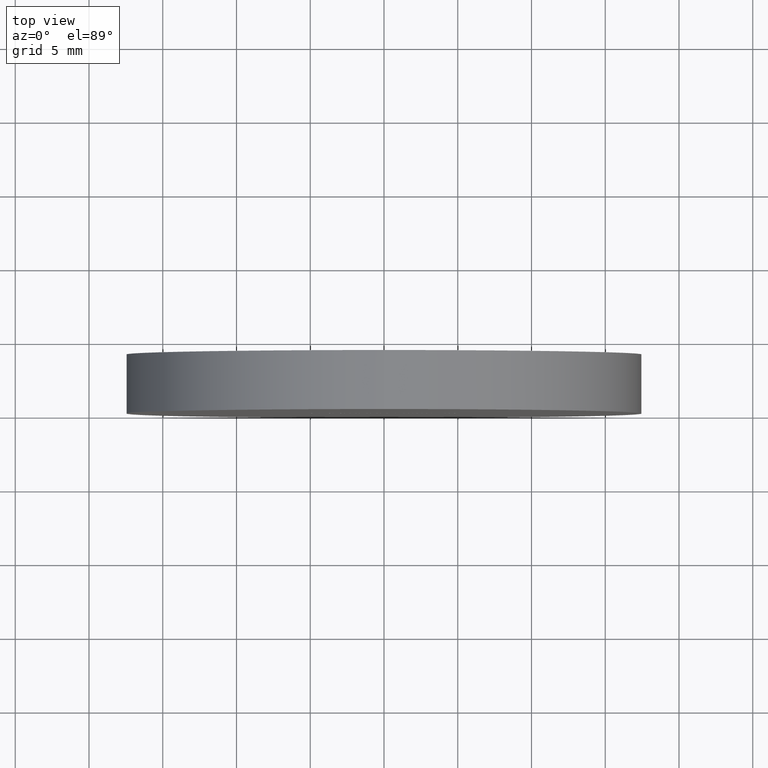
[diagram: clean part render]
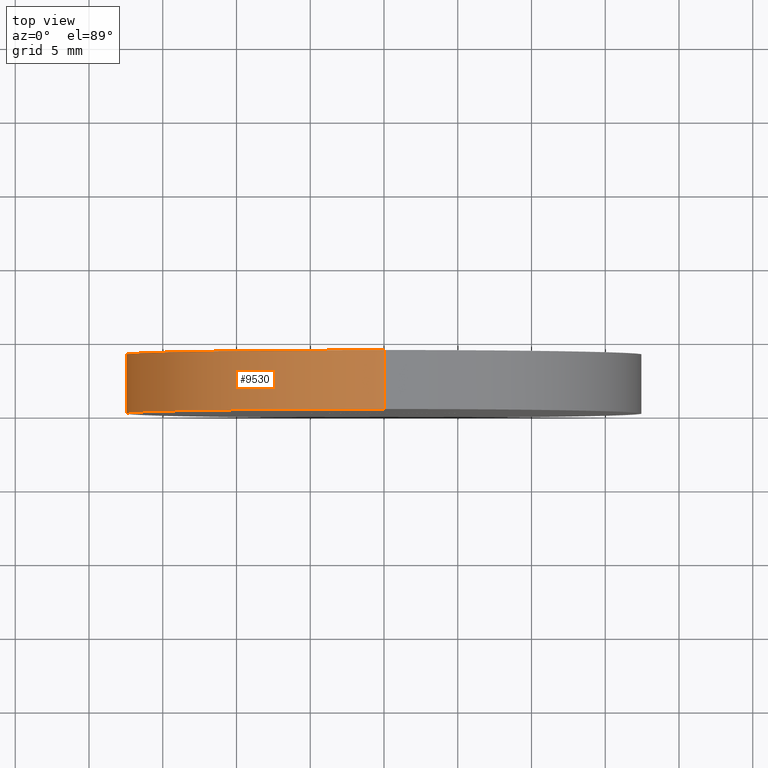
[diagram: same view with one face highlighted and labeled with its STEP entity id]
A machine part, top view. The second image highlights one B-rep face of the part: STEP entity #9530.
In plain terms, the highlighted cylindrical surface (partial cylindrical patch) has radius 17.5 mm, axis along (-0, -1, -0).
Its self-contained STEP definition (entity closure, byte-faithful):
#70 = DIRECTION ( 'NONE',  ( -0.0000000000000000000, -1.000000000000000000, -0.0000000000000000000 ) ) ;
#344 = CARTESIAN_POINT ( 'NONE',  ( 2.143131898507868600E-015, 4.000000000000000000, 17.50000000000000400 ) ) ;
#635 = CIRCLE ( 'NONE', #2362, 17.50000000000000400 ) ;
#643 = EDGE_LOOP ( 'NONE', ( #6062, #5939, #5369, #5733 ) ) ;
#892 = LINE ( 'NONE', #344, #7609 ) ;
#966 = CARTESIAN_POINT ( 'NONE',  ( 0.0000000000000000000, 4.000000000000000000, -17.50000000000000400 ) ) ;
#1359 = DIRECTION ( 'NONE',  ( -0.0000000000000000000, -1.000000000000000000, -0.0000000000000000000 ) ) ;
#1724 = VERTEX_POINT ( 'NONE', #12587 ) ;
#2362 = AXIS2_PLACEMENT_3D ( 'NONE', #12390, #2379, #10265 ) ;
#2379 = DIRECTION ( 'NONE',  ( 0.0000000000000000000, 1.000000000000000000, 0.0000000000000000000 ) ) ;
#3255 = CIRCLE ( 'NONE', #8664, 17.50000000000000400 ) ;
#3285 = EDGE_CURVE ( 'NONE', #4216, #1724, #4630, .T. ) ;
#4039 = DIRECTION ( 'NONE',  ( 0.0000000000000000000, 0.0000000000000000000, -1.000000000000000000 ) ) ;
#4049 = CARTESIAN_POINT ( 'NONE',  ( 2.143131898507868600E-015, 0.0000000000000000000, 17.50000000000000400 ) ) ;
#4216 = VERTEX_POINT ( 'NONE', #12038 ) ;
#4272 = AXIS2_PLACEMENT_3D ( 'NONE', #11870, #8887, #4039 ) ;
#4630 = LINE ( 'NONE', #966, #5911 ) ;
#4977 = EDGE_CURVE ( 'NONE', #1724, #7020, #3255, .T. ) ;
#5193 = EDGE_CURVE ( 'NONE', #8918, #7020, #892, .T. ) ;
#5369 = ORIENTED_EDGE ( 'NONE', *, *, #3285, .T. ) ;
#5436 = CYLINDRICAL_SURFACE ( 'NONE', #4272, 17.50000000000000400 ) ;
#5733 = ORIENTED_EDGE ( 'NONE', *, *, #4977, .T. ) ;
#5911 = VECTOR ( 'NONE', #70, 1000.000000000000000 ) ;
#5939 = ORIENTED_EDGE ( 'NONE', *, *, #6251, .F. ) ;
#6062 = ORIENTED_EDGE ( 'NONE', *, *, #5193, .F. ) ;
#6251 = EDGE_CURVE ( 'NONE', #4216, #8918, #635, .T. ) ;
#6861 = CARTESIAN_POINT ( 'NONE',  ( 2.143131898507868600E-015, 4.000000000000000000, 17.50000000000000400 ) ) ;
#7020 = VERTEX_POINT ( 'NONE', #4049 ) ;
#7609 = VECTOR ( 'NONE', #1359, 1000.000000000000000 ) ;
#8664 = AXIS2_PLACEMENT_3D ( 'NONE', #11315, #12283, #10248 ) ;
#8887 = DIRECTION ( 'NONE',  ( -0.0000000000000000000, -1.000000000000000000, -0.0000000000000000000 ) ) ;
#8918 = VERTEX_POINT ( 'NONE', #6861 ) ;
#9530 = ADVANCED_FACE ( 'NONE', ( #10954 ), #5436, .T. ) ;
#10248 = DIRECTION ( 'NONE',  ( 0.0000000000000000000, 0.0000000000000000000, 1.000000000000000000 ) ) ;
#10265 = DIRECTION ( 'NONE',  ( 0.0000000000000000000, 0.0000000000000000000, 1.000000000000000000 ) ) ;
#10954 = FACE_OUTER_BOUND ( 'NONE', #643, .T. ) ;
#11315 = CARTESIAN_POINT ( 'NONE',  ( 0.0000000000000000000, 0.0000000000000000000, 0.0000000000000000000 ) ) ;
#11870 = CARTESIAN_POINT ( 'NONE',  ( 0.0000000000000000000, 4.000000000000000000, 0.0000000000000000000 ) ) ;
#12038 = CARTESIAN_POINT ( 'NONE',  ( 0.0000000000000000000, 4.000000000000000000, -17.50000000000000400 ) ) ;
#12283 = DIRECTION ( 'NONE',  ( 0.0000000000000000000, 1.000000000000000000, 0.0000000000000000000 ) ) ;
#12390 = CARTESIAN_POINT ( 'NONE',  ( 0.0000000000000000000, 4.000000000000000000, 0.0000000000000000000 ) ) ;
#12587 = CARTESIAN_POINT ( 'NONE',  ( 0.0000000000000000000, 0.0000000000000000000, -17.50000000000000400 ) ) ;